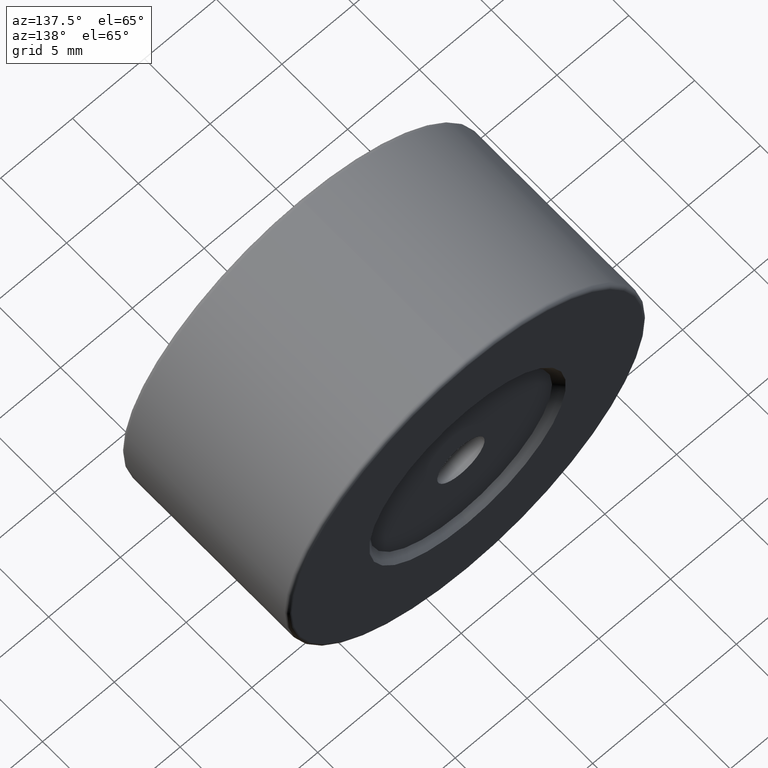
[diagram: clean part render]
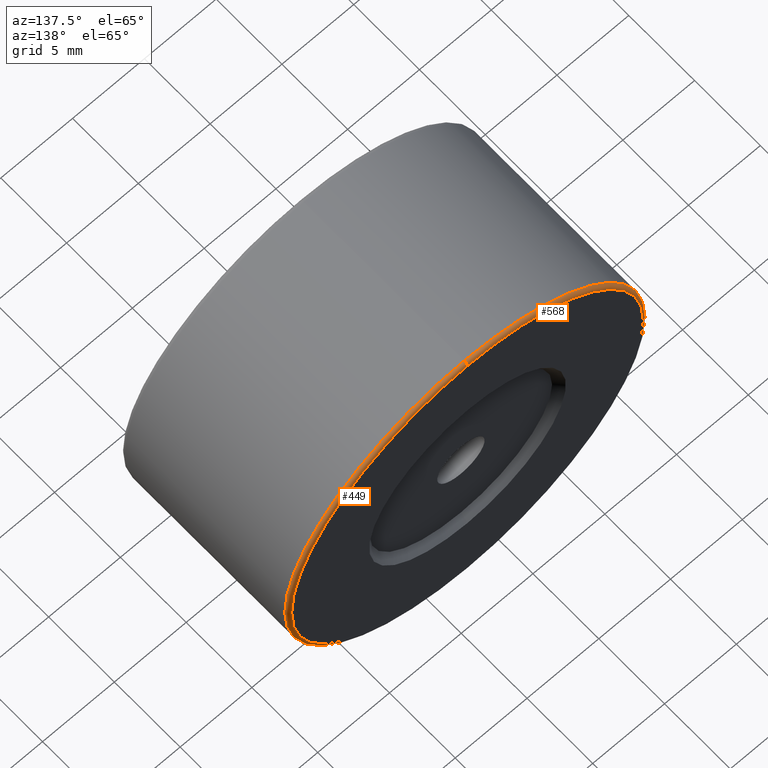
[diagram: same view with one multi-face feature highlighted, each face labeled with its STEP entity id]
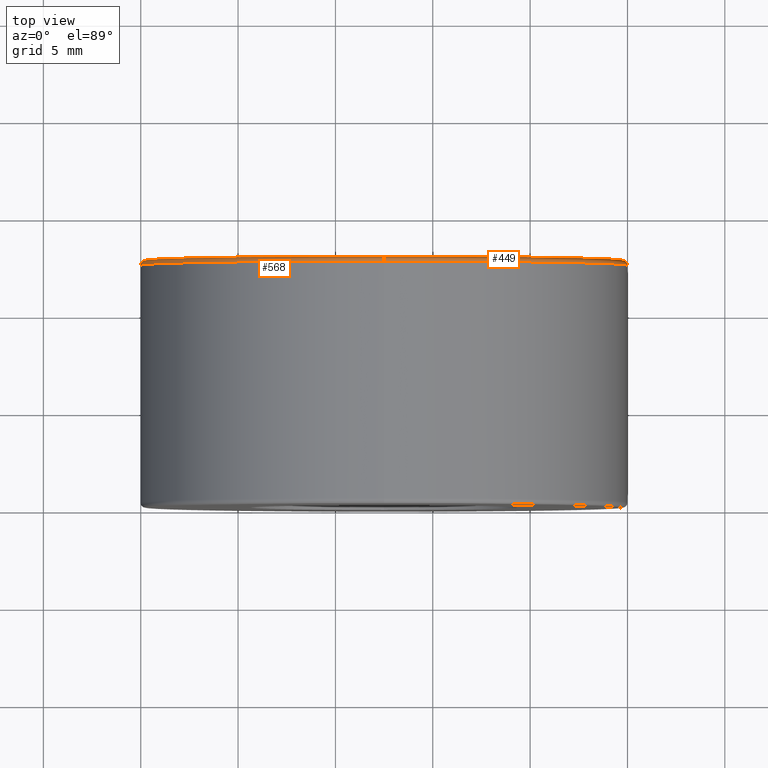
[diagram: same view with one multi-face feature highlighted, each face labeled with its STEP entity id]
A machine part, auxiliary view. The highlighted faces form ONE feature: a constant-radius fillet chain: 2 tangent blend faces with common blend radius 0.25 mm. The faces share edges in the B-rep.
A second angle (top view) of the same feature is appended — it is thin or edge-on in the first view.
Their STEP definitions:
[1] entity #568 (Torus):
#2 = VERTEX_POINT ( 'NONE', #131 ) ;
#8 = EDGE_CURVE ( 'NONE', #413, #174, #272, .T. ) ;
#10 = DIRECTION ( 'NONE',  ( 0.0000000000000000000, 0.0000000000000000000, 1.000000000000000000 ) ) ;
#28 = FACE_OUTER_BOUND ( 'NONE', #571, .T. ) ;
#69 = DIRECTION ( 'NONE',  ( -0.0000000000000000000, -1.000000000000000000, -0.0000000000000000000 ) ) ;
#74 = ORIENTED_EDGE ( 'NONE', *, *, #551, .F. ) ;
#99 = TOROIDAL_SURFACE ( 'NONE', #175, 12.25000000000000000, 0.2500000000000000000 ) ;
#116 = CARTESIAN_POINT ( 'NONE',  ( -22.50520183104453409, 7.498252184769387263, 37.75000000000000711 ) ) ;
#124 = CIRCLE ( 'NONE', #204, 0.2500000000000002220 ) ;
#131 = CARTESIAN_POINT ( 'NONE',  ( -22.50520183104453409, 7.498252184769387263, 62.50000000000000000 ) ) ;
#140 = ORIENTED_EDGE ( 'NONE', *, *, #451, .F. ) ;
#146 = AXIS2_PLACEMENT_3D ( 'NONE', #305, #215, #408 ) ;
#162 = DIRECTION ( 'NONE',  ( 1.000000000000000000, -0.0000000000000000000, 1.224646799147353207E-16 ) ) ;
#165 = CARTESIAN_POINT ( 'NONE',  ( -22.50520183104453409, 7.498252184769387263, 50.00000000000000000 ) ) ;
#174 = VERTEX_POINT ( 'NONE', #344 ) ;
#175 = AXIS2_PLACEMENT_3D ( 'NONE', #165, #211, #217 ) ;
#181 = EDGE_CURVE ( 'NONE', #2, #174, #124, .T. ) ;
#204 = AXIS2_PLACEMENT_3D ( 'NONE', #507, #460, #10 ) ;
#205 = CIRCLE ( 'NONE', #425, 0.2500000000000002220 ) ;
#211 = DIRECTION ( 'NONE',  ( 0.0000000000000000000, 1.000000000000000000, 0.0000000000000000000 ) ) ;
#215 = DIRECTION ( 'NONE',  ( 0.0000000000000000000, 1.000000000000000000, 0.0000000000000000000 ) ) ;
#217 = DIRECTION ( 'NONE',  ( 0.0000000000000000000, 0.0000000000000000000, 1.000000000000000000 ) ) ;
#236 = ORIENTED_EDGE ( 'NONE', *, *, #181, .T. ) ;
#261 = ORIENTED_EDGE ( 'NONE', *, *, #8, .F. ) ;
#272 = CIRCLE ( 'NONE', #146, 12.24999999999999645 ) ;
#305 = CARTESIAN_POINT ( 'NONE',  ( -22.50520183104453409, 7.748252184769388151, 50.00000000000000000 ) ) ;
#343 = DIRECTION ( 'NONE',  ( 0.0000000000000000000, 0.0000000000000000000, 1.000000000000000000 ) ) ;
#344 = CARTESIAN_POINT ( 'NONE',  ( -22.50520183104453409, 7.748252184769388151, 62.25000000000000000 ) ) ;
#353 = CARTESIAN_POINT ( 'NONE',  ( -22.50520183104453409, 7.498252184769387263, 37.50000000000000711 ) ) ;
#403 = DIRECTION ( 'NONE',  ( 0.0000000000000000000, 0.0000000000000000000, -1.000000000000000000 ) ) ;
#408 = DIRECTION ( 'NONE',  ( 0.0000000000000000000, 0.0000000000000000000, 1.000000000000000000 ) ) ;
#413 = VERTEX_POINT ( 'NONE', #423 ) ;
#419 = CIRCLE ( 'NONE', #426, 12.49999999999999645 ) ;
#423 = CARTESIAN_POINT ( 'NONE',  ( -22.50520183104453409, 7.748252184769388151, 37.75000000000000711 ) ) ;
#425 = AXIS2_PLACEMENT_3D ( 'NONE', #116, #162, #403 ) ;
#426 = AXIS2_PLACEMENT_3D ( 'NONE', #562, #69, #343 ) ;
#451 = EDGE_CURVE ( 'NONE', #545, #413, #205, .T. ) ;
#460 = DIRECTION ( 'NONE',  ( -1.000000000000000000, 0.0000000000000000000, 0.0000000000000000000 ) ) ;
#507 = CARTESIAN_POINT ( 'NONE',  ( -22.50520183104453409, 7.498252184769387263, 62.25000000000000000 ) ) ;
#545 = VERTEX_POINT ( 'NONE', #353 ) ;
#551 = EDGE_CURVE ( 'NONE', #2, #545, #419, .T. ) ;
#562 = CARTESIAN_POINT ( 'NONE',  ( -22.50520183104453409, 7.498252184769387263, 50.00000000000000000 ) ) ;
#568 = ADVANCED_FACE ( 'NONE', ( #28 ), #99, .T. ) ;
#571 = EDGE_LOOP ( 'NONE', ( #140, #74, #236, #261 ) ) ;
[2] entity #449 (Torus):
#2 = VERTEX_POINT ( 'NONE', #131 ) ;
#10 = DIRECTION ( 'NONE',  ( 0.0000000000000000000, 0.0000000000000000000, 1.000000000000000000 ) ) ;
#73 = DIRECTION ( 'NONE',  ( -0.0000000000000000000, -1.000000000000000000, -0.0000000000000000000 ) ) ;
#82 = DIRECTION ( 'NONE',  ( 0.0000000000000000000, 1.000000000000000000, 0.0000000000000000000 ) ) ;
#85 = AXIS2_PLACEMENT_3D ( 'NONE', #441, #73, #253 ) ;
#116 = CARTESIAN_POINT ( 'NONE',  ( -22.50520183104453409, 7.498252184769387263, 37.75000000000000711 ) ) ;
#119 = DIRECTION ( 'NONE',  ( 0.0000000000000000000, 0.0000000000000000000, 1.000000000000000000 ) ) ;
#124 = CIRCLE ( 'NONE', #204, 0.2500000000000002220 ) ;
#125 = AXIS2_PLACEMENT_3D ( 'NONE', #346, #82, #119 ) ;
#130 = ORIENTED_EDGE ( 'NONE', *, *, #181, .F. ) ;
#131 = CARTESIAN_POINT ( 'NONE',  ( -22.50520183104453409, 7.498252184769387263, 62.50000000000000000 ) ) ;
#155 = TOROIDAL_SURFACE ( 'NONE', #125, 12.25000000000000000, 0.2500000000000000000 ) ;
#162 = DIRECTION ( 'NONE',  ( 1.000000000000000000, -0.0000000000000000000, 1.224646799147353207E-16 ) ) ;
#169 = EDGE_LOOP ( 'NONE', ( #192, #275, #524, #130 ) ) ;
#174 = VERTEX_POINT ( 'NONE', #344 ) ;
#181 = EDGE_CURVE ( 'NONE', #2, #174, #124, .T. ) ;
#192 = ORIENTED_EDGE ( 'NONE', *, *, #530, .F. ) ;
#204 = AXIS2_PLACEMENT_3D ( 'NONE', #507, #460, #10 ) ;
#205 = CIRCLE ( 'NONE', #425, 0.2500000000000002220 ) ;
#207 = FACE_OUTER_BOUND ( 'NONE', #169, .T. ) ;
#246 = DIRECTION ( 'NONE',  ( 0.0000000000000000000, 1.000000000000000000, 0.0000000000000000000 ) ) ;
#253 = DIRECTION ( 'NONE',  ( 0.0000000000000000000, 0.0000000000000000000, 1.000000000000000000 ) ) ;
#275 = ORIENTED_EDGE ( 'NONE', *, *, #451, .T. ) ;
#344 = CARTESIAN_POINT ( 'NONE',  ( -22.50520183104453409, 7.748252184769388151, 62.25000000000000000 ) ) ;
#346 = CARTESIAN_POINT ( 'NONE',  ( -22.50520183104453409, 7.498252184769387263, 50.00000000000000000 ) ) ;
#353 = CARTESIAN_POINT ( 'NONE',  ( -22.50520183104453409, 7.498252184769387263, 37.50000000000000711 ) ) ;
#381 = EDGE_CURVE ( 'NONE', #174, #413, #454, .T. ) ;
#403 = DIRECTION ( 'NONE',  ( 0.0000000000000000000, 0.0000000000000000000, -1.000000000000000000 ) ) ;
#413 = VERTEX_POINT ( 'NONE', #423 ) ;
#423 = CARTESIAN_POINT ( 'NONE',  ( -22.50520183104453409, 7.748252184769388151, 37.75000000000000711 ) ) ;
#425 = AXIS2_PLACEMENT_3D ( 'NONE', #116, #162, #403 ) ;
#441 = CARTESIAN_POINT ( 'NONE',  ( -22.50520183104453409, 7.498252184769387263, 50.00000000000000000 ) ) ;
#449 = ADVANCED_FACE ( 'NONE', ( #207 ), #155, .T. ) ;
#451 = EDGE_CURVE ( 'NONE', #545, #413, #205, .T. ) ;
#454 = CIRCLE ( 'NONE', #527, 12.24999999999999645 ) ;
#460 = DIRECTION ( 'NONE',  ( -1.000000000000000000, 0.0000000000000000000, 0.0000000000000000000 ) ) ;
#469 = CIRCLE ( 'NONE', #85, 12.49999999999999645 ) ;
#507 = CARTESIAN_POINT ( 'NONE',  ( -22.50520183104453409, 7.498252184769387263, 62.25000000000000000 ) ) ;
#511 = DIRECTION ( 'NONE',  ( 0.0000000000000000000, 0.0000000000000000000, 1.000000000000000000 ) ) ;
#524 = ORIENTED_EDGE ( 'NONE', *, *, #381, .F. ) ;
#527 = AXIS2_PLACEMENT_3D ( 'NONE', #552, #246, #511 ) ;
#530 = EDGE_CURVE ( 'NONE', #545, #2, #469, .T. ) ;
#545 = VERTEX_POINT ( 'NONE', #353 ) ;
#552 = CARTESIAN_POINT ( 'NONE',  ( -22.50520183104453409, 7.748252184769388151, 50.00000000000000000 ) ) ;